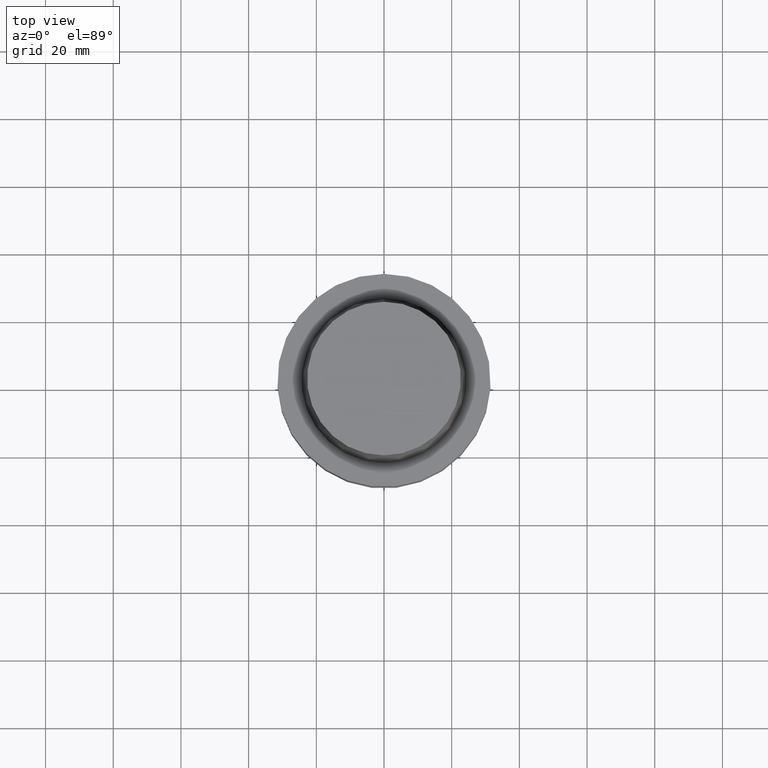
[diagram: clean part render]
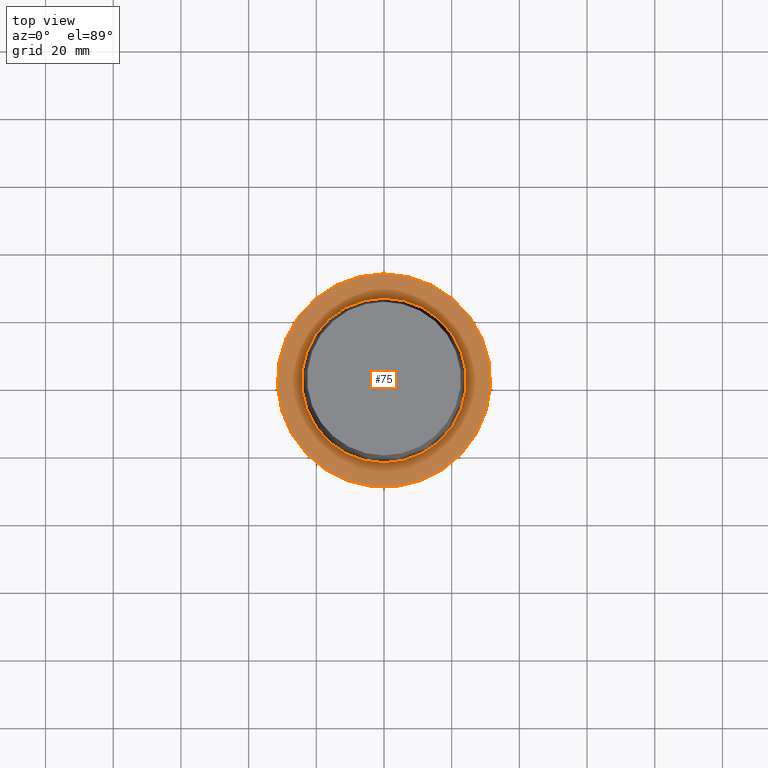
[diagram: same view with one face highlighted and labeled with its STEP entity id]
A machine part, top view. The second image highlights one B-rep face of the part: STEP entity #75.
In plain terms, the highlighted planar face has unit normal (-0, -0, 1).
Its self-contained STEP definition (entity closure, byte-faithful):
#75=ADVANCED_FACE('',(#95,#96),#97,.T.);
#95=FACE_OUTER_BOUND('',#150,.T.);
#96=FACE_BOUND('',#151,.T.);
#97=PLANE('',#152);
#150=EDGE_LOOP('',(#205));
#151=EDGE_LOOP('',(#206));
#152=AXIS2_PLACEMENT_3D('',#207,#208,#209);
#205=ORIENTED_EDGE('',*,*,#298,.F.);
#206=ORIENTED_EDGE('',*,*,#299,.T.);
#207=CARTESIAN_POINT('',(-3.40924878510528E-031,27.907500000104,3.36768305473321E-015));
#208=DIRECTION('',(-6.12323399573677E-017,-1.08546795432774E-016,1.0));
#209=DIRECTION('',(1.14737270099915E-032,-1.0,-1.08546795432774E-016));
#298=EDGE_CURVE('',#316,#316,#317,.T.);
#299=EDGE_CURVE('',#318,#318,#319,.T.);
#316=VERTEX_POINT('',#352);
#317=CIRCLE('',#353,31.5);
#318=VERTEX_POINT('',#354);
#319=CIRCLE('',#355,24.3150000002079);
#352=CARTESIAN_POINT('',(-3.8214424279273E-031,31.5,3.75763741731416E-015));
#353=AXIS2_PLACEMENT_3D('',#388,#389,#390);
#354=CARTESIAN_POINT('',(-2.99705514228327E-031,24.3150000002079,2.97772869215225E-015));
#355=AXIS2_PLACEMENT_3D('',#391,#392,#393);
#388=CARTESIAN_POINT('',(0.0,0.0,0.0));
#389=DIRECTION('',(6.12323399573677E-017,1.22464679914735E-016,-1.0));
#390=DIRECTION('',(-1.23259516440783E-032,1.0,1.22464679914735E-016));
#391=CARTESIAN_POINT('',(0.0,0.0,0.0));
#392=DIRECTION('',(6.12323399573677E-017,1.22464679914735E-016,-1.0));
#393=DIRECTION('',(-1.23259516440783E-032,1.0,1.22464679914735E-016));